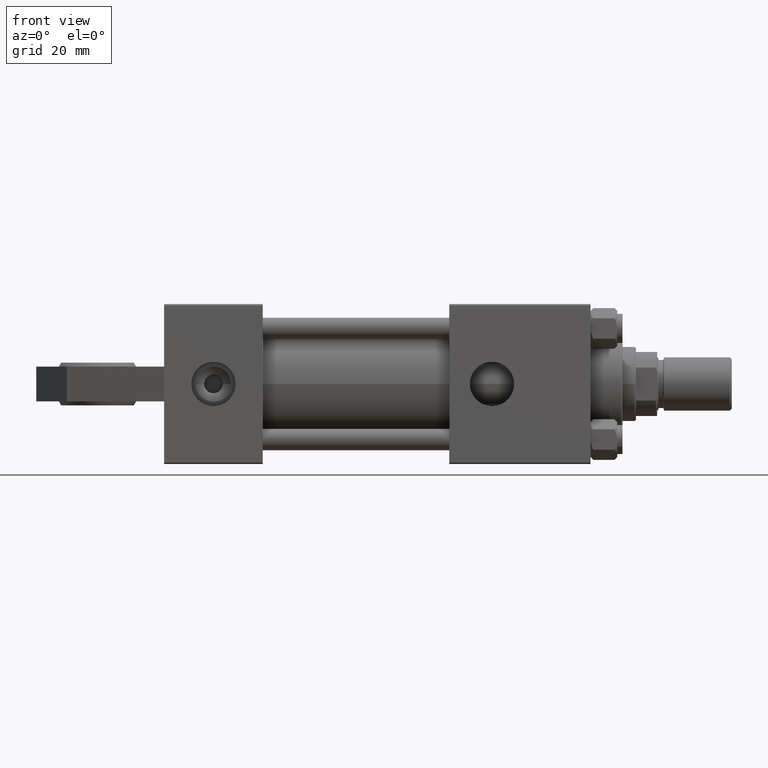
[diagram: clean part render]
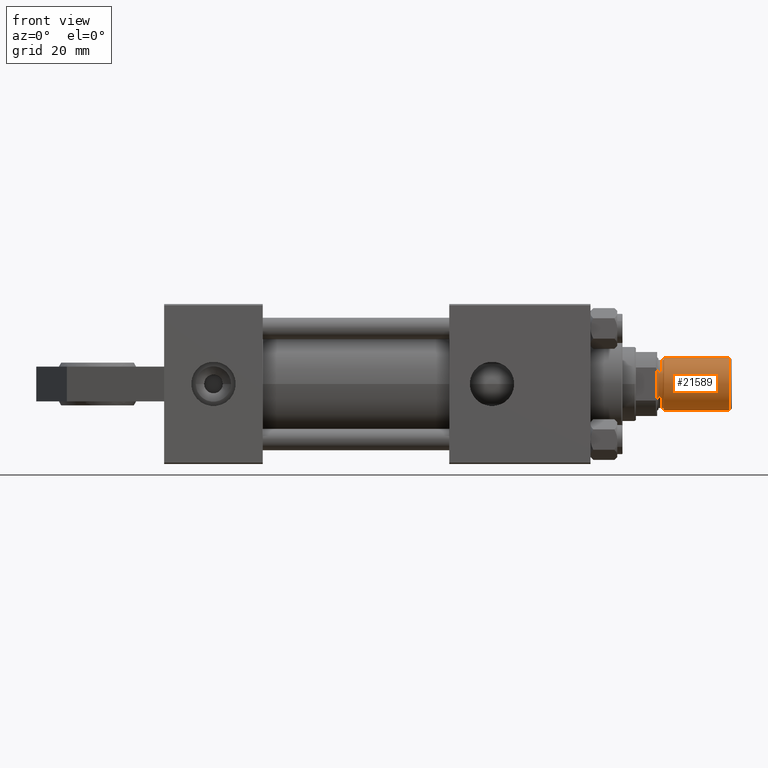
[diagram: same view with one face highlighted and labeled with its STEP entity id]
A machine part, front view. The second image highlights one B-rep face of the part: STEP entity #21589.
In plain terms, the highlighted cylindrical surface (edge-blend (fillet) strip) has radius 10 mm, axis along (1, -0, -0).
Its self-contained STEP definition (entity closure, byte-faithful):
#2759 = CARTESIAN_POINT ( 'NONE',  ( 10.00000000000000000, 1.224646799147353256E-15, 25.50000000000000000 ) ) ;
#2806 = DIRECTION ( 'NONE',  ( -1.000000000000000000, 0.000000000000000000, 0.000000000000000000 ) ) ;
#4000 = CARTESIAN_POINT ( 'NONE',  ( 0.000000000000000000, 0.000000000000000000, 0.8000000000000055955 ) ) ;
#6659 = CYLINDRICAL_SURFACE ( 'NONE', #30844, 10.00000000000000000 ) ;
#7381 = LINE ( 'NONE', #2759, #15349 ) ;
#8451 = EDGE_CURVE ( 'NONE', #40124, #36968, #40320, .T. ) ;
#10512 = EDGE_LOOP ( 'NONE', ( #41856, #19427, #13987, #40310 ) ) ;
#11604 = EDGE_CURVE ( 'NONE', #40124, #22005, #28581, .T. ) ;
#13650 = DIRECTION ( 'NONE',  ( 1.000000000000000000, 0.000000000000000000, 0.000000000000000000 ) ) ;
#13987 = ORIENTED_EDGE ( 'NONE', *, *, #11604, .T. ) ;
#14779 = DIRECTION ( 'NONE',  ( 1.000000000000000000, 0.000000000000000000, 0.000000000000000000 ) ) ;
#15349 = VECTOR ( 'NONE', #50523, 1000.000000000000000 ) ;
#17321 = VECTOR ( 'NONE', #23973, 1000.000000000000000 ) ;
#18215 = CARTESIAN_POINT ( 'NONE',  ( 10.00000000000000000, 1.224646799147353256E-15, 25.50000000000000000 ) ) ;
#18936 = EDGE_CURVE ( 'NONE', #22005, #29354, #41376, .T. ) ;
#19427 = ORIENTED_EDGE ( 'NONE', *, *, #8451, .F. ) ;
#19632 = DIRECTION ( 'NONE',  ( -0.000000000000000000, -0.000000000000000000, 1.000000000000000000 ) ) ;
#21589 = ADVANCED_FACE ( 'NONE', ( #41823 ), #6659, .T. ) ;
#21731 = AXIS2_PLACEMENT_3D ( 'NONE', #4000, #19632, #14779 ) ;
#22005 = VERTEX_POINT ( 'NONE', #49097 ) ;
#22297 = AXIS2_PLACEMENT_3D ( 'NONE', #25977, #37800, #13650 ) ;
#23973 = DIRECTION ( 'NONE',  ( -0.000000000000000000, -0.000000000000000000, -1.000000000000000000 ) ) ;
#25977 = CARTESIAN_POINT ( 'NONE',  ( 0.000000000000000000, 0.000000000000000000, 25.50000000000000000 ) ) ;
#26599 = CARTESIAN_POINT ( 'NONE',  ( -10.00000000000000000, 0.000000000000000000, 25.50000000000000000 ) ) ;
#28078 = CARTESIAN_POINT ( 'NONE',  ( -10.00000000000000000, 0.000000000000000000, 25.50000000000000000 ) ) ;
#28581 = LINE ( 'NONE', #28078, #17321 ) ;
#28788 = EDGE_CURVE ( 'NONE', #36968, #29354, #7381, .T. ) ;
#29354 = VERTEX_POINT ( 'NONE', #37974 ) ;
#30844 = AXIS2_PLACEMENT_3D ( 'NONE', #42086, #37987, #2806 ) ;
#36968 = VERTEX_POINT ( 'NONE', #18215 ) ;
#37800 = DIRECTION ( 'NONE',  ( 0.000000000000000000, 0.000000000000000000, 1.000000000000000000 ) ) ;
#37974 = CARTESIAN_POINT ( 'NONE',  ( 10.00000000000000000, 1.224646799147353256E-15, 0.8000000000000055955 ) ) ;
#37987 = DIRECTION ( 'NONE',  ( -0.000000000000000000, -0.000000000000000000, -1.000000000000000000 ) ) ;
#40124 = VERTEX_POINT ( 'NONE', #26599 ) ;
#40310 = ORIENTED_EDGE ( 'NONE', *, *, #18936, .T. ) ;
#40320 = CIRCLE ( 'NONE', #22297, 10.00000000000000000 ) ;
#41376 = CIRCLE ( 'NONE', #21731, 10.00000000000000000 ) ;
#41823 = FACE_OUTER_BOUND ( 'NONE', #10512, .T. ) ;
#41856 = ORIENTED_EDGE ( 'NONE', *, *, #28788, .F. ) ;
#42086 = CARTESIAN_POINT ( 'NONE',  ( 0.000000000000000000, 0.000000000000000000, 25.50000000000000000 ) ) ;
#49097 = CARTESIAN_POINT ( 'NONE',  ( -10.00000000000000000, 0.000000000000000000, 0.8000000000000055955 ) ) ;
#50523 = DIRECTION ( 'NONE',  ( -0.000000000000000000, -0.000000000000000000, -1.000000000000000000 ) ) ;